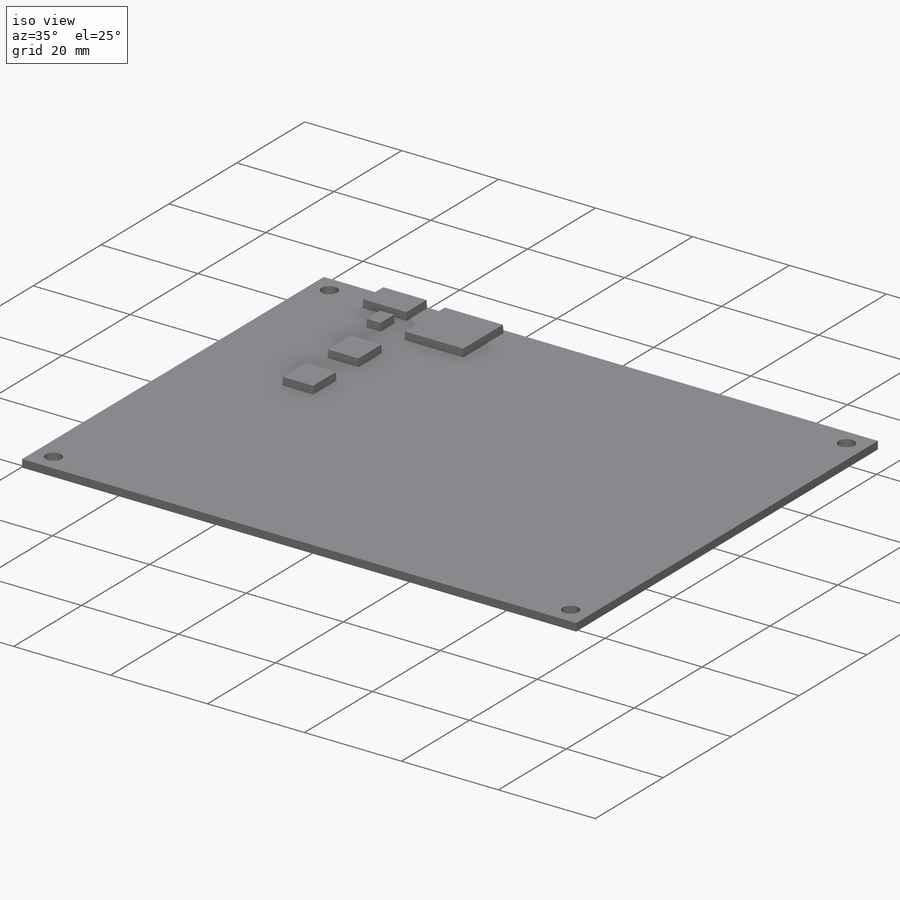
[diagram: iso view]
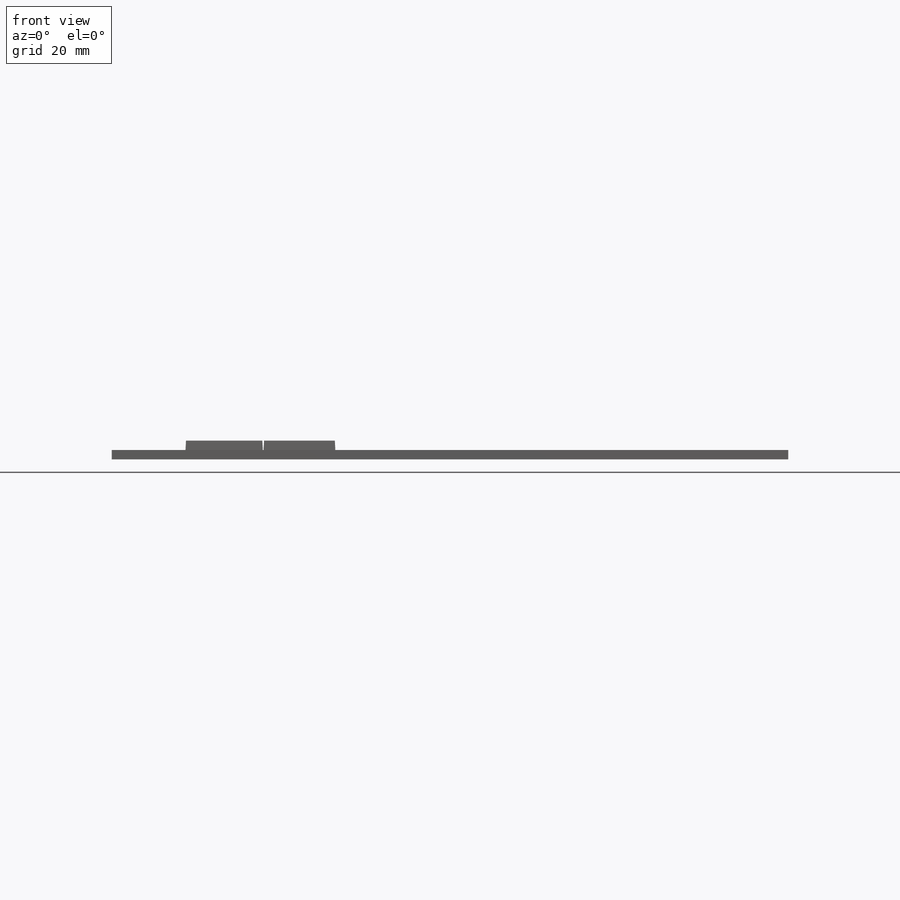
[diagram: front view]
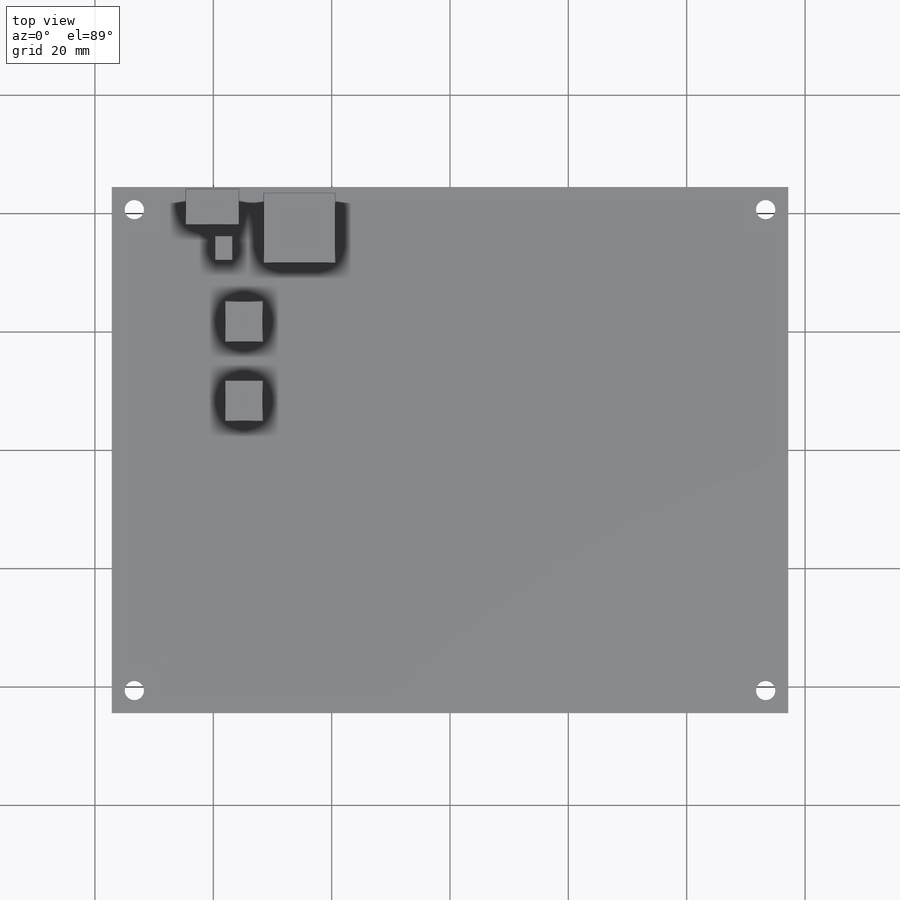
[diagram: top view]
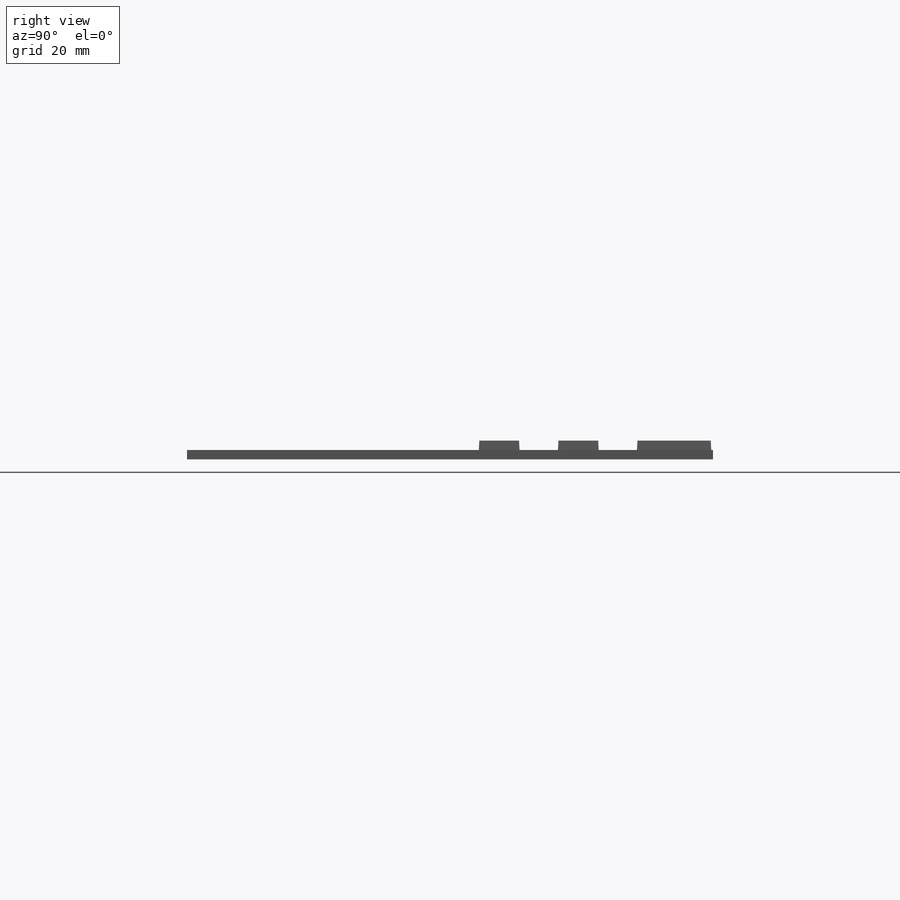
[diagram: right view]
SOLIDWORKS PART (.sldprt)
format: sldprt  version: not decoded by parser v0  size: 221,696 bytes
history: native  units: mm
features: sketch x4, extrude x2, material x1, hole x1 (+16 scaffold rows collapsed)
feature tree (24):
  scaffold x16  (default folders/planes/origin — collapsed)
  material  "Material <not specified>"
  sketch  "Sketch1"  dims[D1=114.3mm D2=88.9mm D3=7.62mm D4=12.7mm]
  extrude  "Extrude1"  Depth=1.6002mm
  hole  "#4 Clearance Hole1"  Diameter=3.2639mm Depth=1.6002mm
  sketch  "Sketch4"  dims[D1=110.49mm D2=3.81mm D3=3.81mm D4=85.09mm]
  sketch  "Sketch3"  dims[hole-wizard template sketch: 60 standard entries collapsed; hole parameters kept: c18.Thru Hole Depth=1.6002mm]
  sketch  "Sketch5"
  extrude  "Boss-Extrude1"  Depth=1.5875mm
decode coverage: 6 of 7 modeling features carry decoded parameters
note: ~ marks probable driven/reference dimensions
note: suppression state not decoded; provenance and decode notes live in map.json
